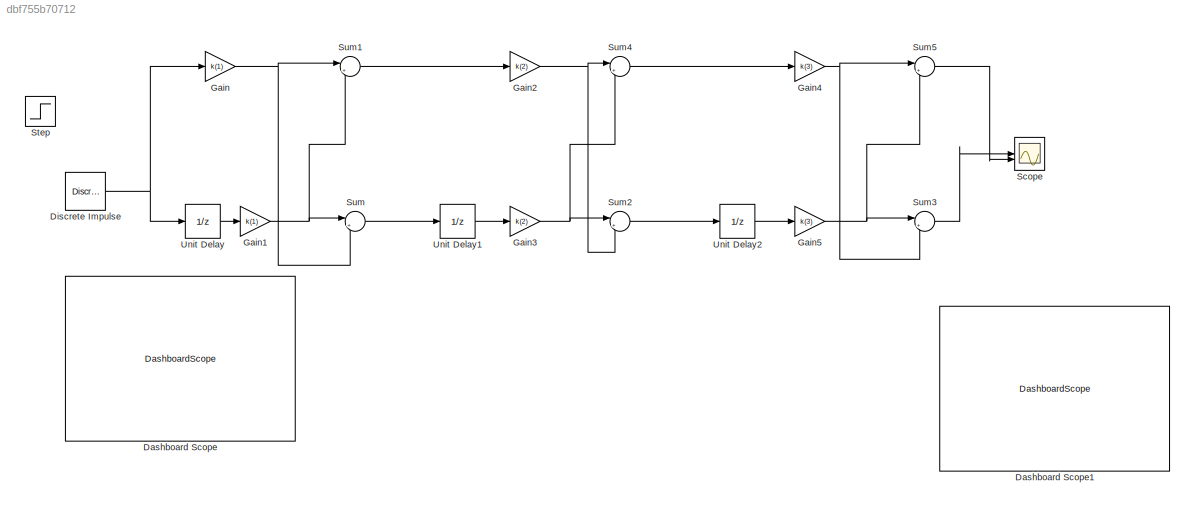
MODEL slx_dbf755b70712
KIND model
CONFIG AbsTol = auto
CONFIG EnableMultiTasking = off
CONFIG FixedStep = auto
CONFIG MaxStep = auto
CONFIG MinStep = auto
CONFIG RelTol = 1e-3
CONFIG SampleTimeConstraint = Unconstrained
CONFIG SolverName = VariableStepAuto
CONFIG StartTime = 0.0
CONFIG StopTime = 10.0
BLOCK [DashboardScope] Dashboard Scope
BLOCK [DashboardScope] Dashboard Scope1
BLOCK [Reference] Discrete Impulse  REF=dspsrcs4/Discrete 
Impulse
  SourceBlock = dspsrcs4/Discrete \nImpulse
  SourceType = Discrete Impulse
BLOCK [Gain] Gain
  Gain = k(1)
BLOCK [Gain] Gain1
  Gain = k(1)
BLOCK [Gain] Gain2
  Gain = k(2)
BLOCK [Gain] Gain3
  Gain = k(2)
BLOCK [Gain] Gain4
  Gain = k(3)
BLOCK [Gain] Gain5
  Gain = k(3)
BLOCK [Scope] Scope
  Floating = off
  NumInputPorts = 2
  ScopeSpecificationString = Simulink.scopes.TimeScopeBlockCfg('CurrentConfiguration', extmgr.ConfigurationSet(extmgr.Configuration('Core','General UI',true),extmgr.Configuration('Core','Source UI',true),extmgr.Configuration('Sources','WiredSimulink',true),extmgr.Configuration('Visuals','Time Domain',true,'SerializedDisplays',{struct('MinYLimReal','-0.00407','MaxYLimReal','0.0366','YLabelReal','','MinYLimMag','0.00000','MaxYL...<+1357ch>
BLOCK [Step] Step
  SampleTime = 0
BLOCK [Sum] Sum
  Inputs = |++
BLOCK [Sum] Sum1
  Inputs = |++
BLOCK [Sum] Sum2
  Inputs = |++
BLOCK [Sum] Sum3
  Inputs = |++
BLOCK [Sum] Sum4
  Inputs = |++
BLOCK [Sum] Sum5
  Inputs = |++
BLOCK [UnitDelay] Unit Delay
  HasFrameUpgradeWarning = on
  SampleTime = -1
BLOCK [UnitDelay] Unit Delay1
  HasFrameUpgradeWarning = on
  SampleTime = -1
BLOCK [UnitDelay] Unit Delay2
  HasFrameUpgradeWarning = on
  SampleTime = -1
NET Discrete Impulse:1 -> Gain:1, Unit Delay:1
NET Gain1:1 -> Sum1:2, Sum:1
NET Gain2:1 -> Sum2:2, Sum4:1
NET Gain3:1 -> Sum2:1, Sum4:2
NET Gain4:1 -> Sum3:2, Sum5:1
NET Gain5:1 -> Sum3:1, Sum5:2
NET Gain:1 -> Sum1:1, Sum:2
LINE Sum1:1 -> Gain2:1
LINE Sum2:1 -> Unit Delay2:1
LINE Sum3:1 -> Scope:1
LINE Sum4:1 -> Gain4:1
LINE Sum5:1 -> Scope:2
LINE Sum:1 -> Unit Delay1:1
LINE Unit Delay1:1 -> Gain3:1
LINE Unit Delay2:1 -> Gain5:1
LINE Unit Delay:1 -> Gain1:1
note: NET lines group one-source signal fan-out (src -> all destinations, sorted); 1:1 wires keep LINE
